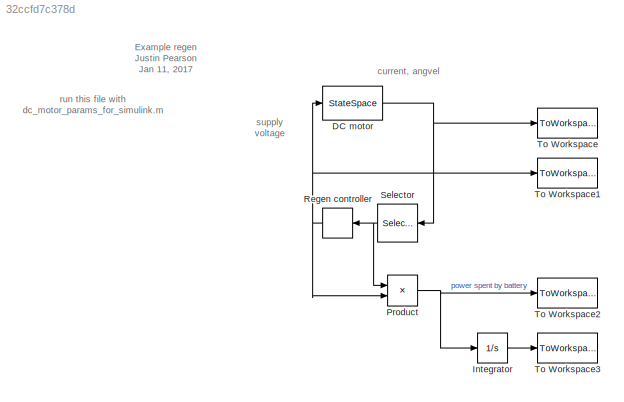
MODEL slx_32ccfd7c378d
KIND model
CONFIG AbsTol = auto
CONFIG FixedStep = .00001
CONFIG MaxStep = auto
CONFIG MinStep = auto
CONFIG RelTol = 1e-3
CONFIG SampleTimeConstraint = Unconstrained
CONFIG Solver = VariableStepAuto
CONFIG SolverMode = Auto
CONFIG SolverName = VariableStepAuto
CONFIG StartTime = 0.0
CONFIG StopTime = tmax
BLOCK [StateSpace] DC motor
  A = A
  B = B
  C = C
  D = D
  Ports = [1, 1]
  X0 = [0;wss]
BLOCK [Integrator] Integrator
  Ports = [1, 1]
BLOCK [Product] Product
  InputSameDT = off
  OutDataTypeStr = Inherit: Inherit via internal rule
  Ports = [2, 1]
  RndMeth = Floor
  SaturateOnIntegerOverflow = off
BLOCK [Relay] Regen controller
  InputProcessing = Elements as channels (sample based)
  OffOutputValue = voltOff
  OffSwitchValue = thresOff
  OnOutputValue = voltOn
  OnSwitchValue = thresOn
BLOCK [Selector] Selector
  IndexOptions = Index vector (dialog)
  Indices = [1]
  InputPortWidth = 2
  OutputSizes = 1
  Ports = [1, 1]
BLOCK [ToWorkspace] To Workspace
  FixptAsFi = on
  MaxDataPoints = inf
  Ports = [1]
  SampleTime = -1
  Save2DSignal = 3-D array (concatenate along third dimension)
  SaveFormat = Timeseries
  VariableName = X
BLOCK [ToWorkspace] To Workspace1
  FixptAsFi = on
  MaxDataPoints = inf
  Ports = [1]
  SampleTime = -1
  Save2DSignal = 3-D array (concatenate along third dimension)
  SaveFormat = Timeseries
  VariableName = V
BLOCK [ToWorkspace] To Workspace2
  FixptAsFi = on
  MaxDataPoints = inf
  Ports = [1]
  SampleTime = -1
  Save2DSignal = 3-D array (concatenate along third dimension)
  SaveFormat = Timeseries
  VariableName = P
BLOCK [ToWorkspace] To Workspace3
  FixptAsFi = on
  MaxDataPoints = inf
  Ports = [1]
  SampleTime = -1
  Save2DSignal = 3-D array (concatenate along third dimension)
  SaveFormat = Timeseries
  VariableName = Energy
ANNOTATION (root): Example regen Justin Pearson Jan 11, 2017
ANNOTATION (root): current, angvel
ANNOTATION (root): run this file with dc_motor_params_for_simulink.m
ANNOTATION (root): supply voltage
NET DC motor:1 -> Selector:1, To Workspace:1
LINE Integrator:1 -> To Workspace3:1
NET Product:1 -> Integrator:1, To Workspace2:1
NET Regen controller:1 -> DC motor:1, Product:2, To Workspace1:1
NET Selector:1 -> Product:1, Regen controller:1
note: NET lines group one-source signal fan-out (src -> all destinations, sorted); 1:1 wires keep LINE
